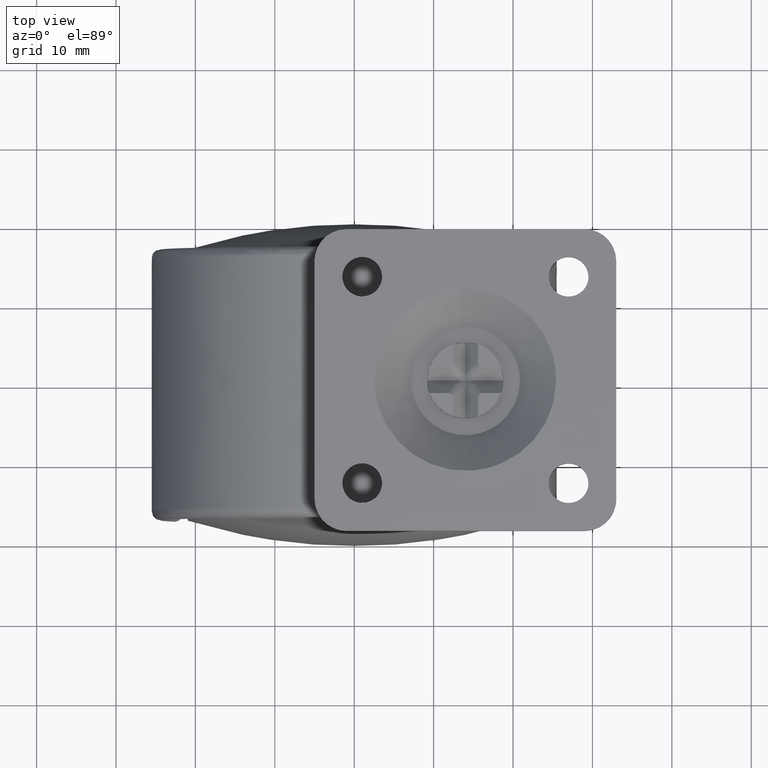
[diagram: clean part render]
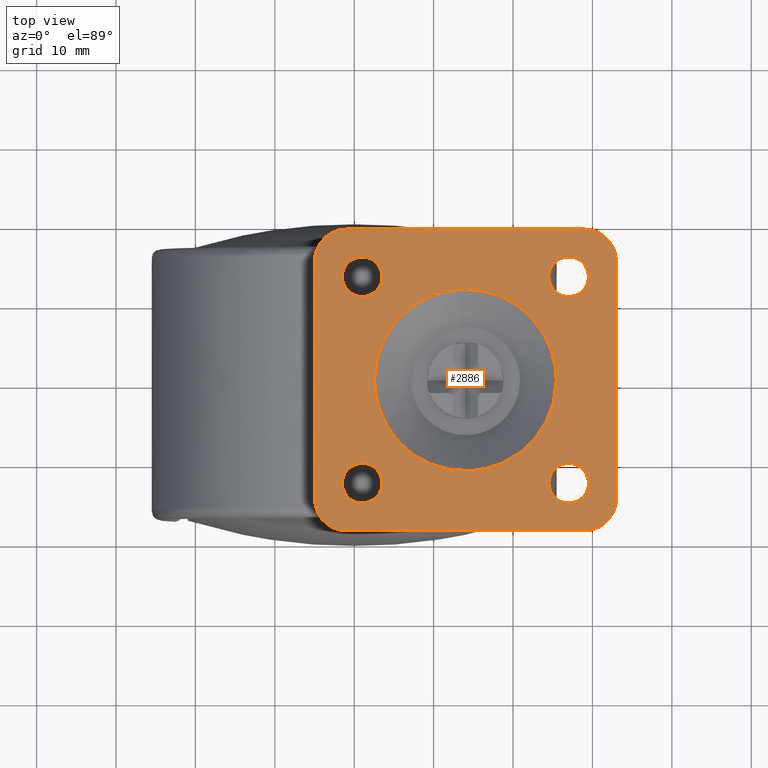
[diagram: same view with one face highlighted and labeled with its STEP entity id]
A machine part, top view. The second image highlights one B-rep face of the part: STEP entity #2886.
In plain terms, the highlighted face is a freeform B-spline surface patch.
Its self-contained STEP definition (entity closure, byte-faithful):
#1166=CARTESIAN_POINT('',(13.101851479533201,11.412033572065781,37.500000000000668));
#1167=VERTEX_POINT('',#1166);
#1173=CARTESIAN_POINT('',(2.552676155037100,0.0,37.500000000000000));
#1174=VERTEX_POINT('',#1173);
#1175=CARTESIAN_POINT('',(2.552676155037100,0.0,37.500000000000000));
#1176=CARTESIAN_POINT('',(2.552676155037099,10.581795468424964,37.500000000000000));
#1177=CARTESIAN_POINT('',(13.101851479533208,11.412033572065782,37.500000000000668));
#1185=(BOUNDED_CURVE()B_SPLINE_CURVE(2,(#1175,#1176,#1177),.UNSPECIFIED.,.F.,.U.)B_SPLINE_CURVE_WITH_KNOTS((3,3),(0.0,0.236331300632603),.UNSPECIFIED.)CURVE()GEOMETRIC_REPRESENTATION_ITEM()RATIONAL_B_SPLINE_CURVE((1.0,0.723120658605388,0.969723356171474))REPRESENTATION_ITEM(''));
#1186=EDGE_CURVE('',#1174,#1167,#1185,.T.);
#1188=CARTESIAN_POINT('',(14.898144520467000,-11.412033572065781,37.500000000000682));
#1189=VERTEX_POINT('',#1188);
#1190=CARTESIAN_POINT('',(14.898144520467001,-11.412033572065784,37.500000000000675));
#1191=CARTESIAN_POINT('',(14.449764500245397,-11.447321844962996,37.500000000000000));
#1192=CARTESIAN_POINT('',(13.999998000000099,-11.447321844963000,37.500000000000000));
#1193=CARTESIAN_POINT('',(2.552676155037098,-11.447321844963000,37.499999999999993));
#1194=CARTESIAN_POINT('',(2.552676155037100,0.0,37.500000000000000));
#1202=(BOUNDED_CURVE()B_SPLINE_CURVE(2,(#1190,#1191,#1192,#1193,#1194),.UNSPECIFIED.,.F.,.U.)B_SPLINE_CURVE_WITH_KNOTS((3,2,3),(0.736331300632603,0.750000000000000,1.0),.UNSPECIFIED.)CURVE()GEOMETRIC_REPRESENTATION_ITEM()RATIONAL_B_SPLINE_CURVE((0.969723356171474,0.983986122581159,1.0,0.707106781186548,1.0))REPRESENTATION_ITEM(''));
#1203=EDGE_CURVE('',#1189,#1174,#1202,.T.);
#1279=CARTESIAN_POINT('',(25.447319844963101,0.0,37.500000000000000));
#1280=VERTEX_POINT('',#1279);
#1281=CARTESIAN_POINT('',(25.447319844963101,0.0,37.500000000000000));
#1282=CARTESIAN_POINT('',(25.447319844963104,-10.581795468424994,37.500000000000000));
#1283=CARTESIAN_POINT('',(14.898144520467003,-11.412033572065781,37.500000000000675));
#1291=(BOUNDED_CURVE()B_SPLINE_CURVE(2,(#1281,#1282,#1283),.UNSPECIFIED.,.F.,.U.)B_SPLINE_CURVE_WITH_KNOTS((3,3),(0.500000000000000,0.736331300632604),.UNSPECIFIED.)CURVE()GEOMETRIC_REPRESENTATION_ITEM()RATIONAL_B_SPLINE_CURVE((1.0,0.723120658605388,0.969723356171476))REPRESENTATION_ITEM(''));
#1292=EDGE_CURVE('',#1280,#1189,#1291,.T.);
#1294=CARTESIAN_POINT('',(13.101851479533208,11.412033572065782,37.500000000000668));
#1295=CARTESIAN_POINT('',(13.550231499754807,11.447321844963005,37.500000000000007));
#1296=CARTESIAN_POINT('',(13.999998000000099,11.447321844963000,37.500000000000000));
#1297=CARTESIAN_POINT('',(25.447319844963097,11.447321844963000,37.499999999999993));
#1298=CARTESIAN_POINT('',(25.447319844963101,0.0,37.500000000000000));
#1306=(BOUNDED_CURVE()B_SPLINE_CURVE(2,(#1294,#1295,#1296,#1297,#1298),.UNSPECIFIED.,.F.,.U.)B_SPLINE_CURVE_WITH_KNOTS((3,2,3),(0.236331300632603,0.250000000000000,0.500000000000000),.UNSPECIFIED.)CURVE()GEOMETRIC_REPRESENTATION_ITEM()RATIONAL_B_SPLINE_CURVE((0.969723356171474,0.983986122581159,1.0,0.707106781186548,1.0))REPRESENTATION_ITEM(''));
#1307=EDGE_CURVE('',#1167,#1280,#1306,.T.);
#1581=CARTESIAN_POINT('',(1.196145739418088,15.492293334325060,37.500000000000000));
#1582=VERTEX_POINT('',#1581);
#1588=CARTESIAN_POINT('',(-1.500002000000110,13.0,37.500000000000000));
#1589=VERTEX_POINT('',#1588);
#1590=CARTESIAN_POINT('',(1.196145739418089,15.492293334325064,37.500000000000007));
#1591=CARTESIAN_POINT('',(1.098223267618107,15.500000000000005,37.499999999999993));
#1592=CARTESIAN_POINT('',(0.999997999999890,15.500000000000000,37.500000000000000));
#1593=CARTESIAN_POINT('',(-1.500002000000109,15.500000000000004,37.499999999999993));
#1594=CARTESIAN_POINT('',(-1.500002000000110,13.0,37.500000000000000));
#1602=(BOUNDED_CURVE()B_SPLINE_CURVE(2,(#1590,#1591,#1592,#1593,#1594),.UNSPECIFIED.,.F.,.U.)B_SPLINE_CURVE_WITH_KNOTS((3,2,3),(0.736331300619205,0.750000000000000,1.0),.UNSPECIFIED.)CURVE()GEOMETRIC_REPRESENTATION_ITEM()RATIONAL_B_SPLINE_CURVE((0.969723356143513,0.983986122565462,1.0,0.707106781186548,1.0))REPRESENTATION_ITEM(''));
#1603=EDGE_CURVE('',#1582,#1589,#1602,.T.);
#1605=CARTESIAN_POINT('',(0.803850260581692,10.507706665674940,37.500000000000000));
#1606=VERTEX_POINT('',#1605);
#1607=CARTESIAN_POINT('',(-1.500002000000110,13.0,37.500000000000000));
#1608=CARTESIAN_POINT('',(-1.500002000000111,10.689023771037872,37.500000000000007));
#1609=CARTESIAN_POINT('',(0.803850260581692,10.507706665674942,37.500000000000000));
#1617=(BOUNDED_CURVE()B_SPLINE_CURVE(2,(#1607,#1608,#1609),.UNSPECIFIED.,.F.,.U.)B_SPLINE_CURVE_WITH_KNOTS((3,3),(0.0,0.236331300619205),.UNSPECIFIED.)CURVE()GEOMETRIC_REPRESENTATION_ITEM()RATIONAL_B_SPLINE_CURVE((1.0,0.723120658621085,0.969723356143513))REPRESENTATION_ITEM(''));
#1618=EDGE_CURVE('',#1589,#1606,#1617,.T.);
#1664=CARTESIAN_POINT('',(3.499997999999890,13.0,37.500000000000000));
#1665=VERTEX_POINT('',#1664);
#1666=CARTESIAN_POINT('',(0.803850260581692,10.507706665674942,37.500000000000007));
#1667=CARTESIAN_POINT('',(0.901772732381673,10.499999999999996,37.499999999999993));
#1668=CARTESIAN_POINT('',(0.999997999999890,10.500000000000000,37.500000000000000));
#1669=CARTESIAN_POINT('',(3.499997999999890,10.499999999999998,37.499999999999993));
#1670=CARTESIAN_POINT('',(3.499997999999890,13.0,37.500000000000000));
#1678=(BOUNDED_CURVE()B_SPLINE_CURVE(2,(#1666,#1667,#1668,#1669,#1670),.UNSPECIFIED.,.F.,.U.)B_SPLINE_CURVE_WITH_KNOTS((3,2,3),(0.236331300619205,0.250000000000000,0.500000000000000),.UNSPECIFIED.)CURVE()GEOMETRIC_REPRESENTATION_ITEM()RATIONAL_B_SPLINE_CURVE((0.969723356143513,0.983986122565462,1.0,0.707106781186548,1.0))REPRESENTATION_ITEM(''));
#1679=EDGE_CURVE('',#1606,#1665,#1678,.T.);
#1681=CARTESIAN_POINT('',(3.499997999999890,13.0,37.500000000000000));
#1682=CARTESIAN_POINT('',(3.499997999999891,15.310976228962138,37.500000000000000));
#1683=CARTESIAN_POINT('',(1.196145739418089,15.492293334325064,37.500000000000007));
#1691=(BOUNDED_CURVE()B_SPLINE_CURVE(2,(#1681,#1682,#1683),.UNSPECIFIED.,.F.,.U.)B_SPLINE_CURVE_WITH_KNOTS((3,3),(0.500000000000000,0.736331300619206),.UNSPECIFIED.)CURVE()GEOMETRIC_REPRESENTATION_ITEM()RATIONAL_B_SPLINE_CURVE((1.0,0.723120658621085,0.969723356143515))REPRESENTATION_ITEM(''));
#1692=EDGE_CURVE('',#1665,#1582,#1691,.T.);
#1763=CARTESIAN_POINT('',(27.196145739418299,15.492293334325060,37.500000000000000));
#1764=VERTEX_POINT('',#1763);
#1770=CARTESIAN_POINT('',(24.499998000000101,13.0,37.500000000000000));
#1771=VERTEX_POINT('',#1770);
#1772=CARTESIAN_POINT('',(27.196145739418302,15.492293334325057,37.500000000000000));
#1773=CARTESIAN_POINT('',(27.098223267618319,15.500000000000002,37.500000000000000));
#1774=CARTESIAN_POINT('',(26.999998000000101,15.500000000000000,37.500000000000000));
#1775=CARTESIAN_POINT('',(24.499998000000108,15.500000000000004,37.499999999999993));
#1776=CARTESIAN_POINT('',(24.499998000000101,13.0,37.500000000000000));
#1784=(BOUNDED_CURVE()B_SPLINE_CURVE(2,(#1772,#1773,#1774,#1775,#1776),.UNSPECIFIED.,.F.,.U.)B_SPLINE_CURVE_WITH_KNOTS((3,2,3),(0.736331300619205,0.750000000000000,1.0),.UNSPECIFIED.)CURVE()GEOMETRIC_REPRESENTATION_ITEM()RATIONAL_B_SPLINE_CURVE((0.969723356143512,0.983986122565462,1.0,0.707106781186548,1.0))REPRESENTATION_ITEM(''));
#1785=EDGE_CURVE('',#1764,#1771,#1784,.T.);
#1787=CARTESIAN_POINT('',(26.803850260581900,10.507706665674940,37.500000000000000));
#1788=VERTEX_POINT('',#1787);
#1789=CARTESIAN_POINT('',(24.499998000000101,13.0,37.500000000000000));
#1790=CARTESIAN_POINT('',(24.499998000000108,10.689023771037872,37.500000000000000));
#1791=CARTESIAN_POINT('',(26.803850260581907,10.507706665674942,37.500000000000007));
#1799=(BOUNDED_CURVE()B_SPLINE_CURVE(2,(#1789,#1790,#1791),.UNSPECIFIED.,.F.,.U.)B_SPLINE_CURVE_WITH_KNOTS((3,3),(0.0,0.236331300619205),.UNSPECIFIED.)CURVE()GEOMETRIC_REPRESENTATION_ITEM()RATIONAL_B_SPLINE_CURVE((1.0,0.723120658621085,0.969723356143513))REPRESENTATION_ITEM(''));
#1800=EDGE_CURVE('',#1771,#1788,#1799,.T.);
#1846=CARTESIAN_POINT('',(29.499998000000101,13.0,37.500000000000000));
#1847=VERTEX_POINT('',#1846);
#1848=CARTESIAN_POINT('',(26.803850260581907,10.507706665674934,37.500000000000000));
#1849=CARTESIAN_POINT('',(26.901772732381886,10.499999999999998,37.500000000000000));
#1850=CARTESIAN_POINT('',(26.999998000000101,10.500000000000000,37.500000000000000));
#1851=CARTESIAN_POINT('',(29.499998000000097,10.499999999999998,37.499999999999993));
#1852=CARTESIAN_POINT('',(29.499998000000101,13.0,37.500000000000000));
#1860=(BOUNDED_CURVE()B_SPLINE_CURVE(2,(#1848,#1849,#1850,#1851,#1852),.UNSPECIFIED.,.F.,.U.)B_SPLINE_CURVE_WITH_KNOTS((3,2,3),(0.236331300619205,0.250000000000000,0.500000000000000),.UNSPECIFIED.)CURVE()GEOMETRIC_REPRESENTATION_ITEM()RATIONAL_B_SPLINE_CURVE((0.969723356143513,0.983986122565462,1.0,0.707106781186548,1.0))REPRESENTATION_ITEM(''));
#1861=EDGE_CURVE('',#1788,#1847,#1860,.T.);
#1863=CARTESIAN_POINT('',(29.499998000000101,13.0,37.500000000000000));
#1864=CARTESIAN_POINT('',(29.499998000000105,15.310976228962138,37.500000000000000));
#1865=CARTESIAN_POINT('',(27.196145739418302,15.492293334325064,37.500000000000007));
#1873=(BOUNDED_CURVE()B_SPLINE_CURVE(2,(#1863,#1864,#1865),.UNSPECIFIED.,.F.,.U.)B_SPLINE_CURVE_WITH_KNOTS((3,3),(0.500000000000000,0.736331300619206),.UNSPECIFIED.)CURVE()GEOMETRIC_REPRESENTATION_ITEM()RATIONAL_B_SPLINE_CURVE((1.0,0.723120658621085,0.969723356143515))REPRESENTATION_ITEM(''));
#1874=EDGE_CURVE('',#1847,#1764,#1873,.T.);
#1945=CARTESIAN_POINT('',(1.196145739418091,-10.507706665674940,37.500000000000000));
#1946=VERTEX_POINT('',#1945);
#1952=CARTESIAN_POINT('',(-1.500002000000107,-13.0,37.500000000000000));
#1953=VERTEX_POINT('',#1952);
#1954=CARTESIAN_POINT('',(1.196145739418092,-10.507706665674942,37.500000000000007));
#1955=CARTESIAN_POINT('',(1.098223267618110,-10.499999999999996,37.499999999999993));
#1956=CARTESIAN_POINT('',(0.999997999999893,-10.500000000000000,37.500000000000000));
#1957=CARTESIAN_POINT('',(-1.500002000000106,-10.499999999999998,37.499999999999993));
#1958=CARTESIAN_POINT('',(-1.500002000000107,-13.0,37.500000000000000));
#1966=(BOUNDED_CURVE()B_SPLINE_CURVE(2,(#1954,#1955,#1956,#1957,#1958),.UNSPECIFIED.,.F.,.U.)B_SPLINE_CURVE_WITH_KNOTS((3,2,3),(0.736331300619205,0.750000000000000,1.0),.UNSPECIFIED.)CURVE()GEOMETRIC_REPRESENTATION_ITEM()RATIONAL_B_SPLINE_CURVE((0.969723356143513,0.983986122565462,1.0,0.707106781186548,1.0))REPRESENTATION_ITEM(''));
#1967=EDGE_CURVE('',#1946,#1953,#1966,.T.);
#1969=CARTESIAN_POINT('',(0.803850260581695,-15.492293334325060,37.500000000000000));
#1970=VERTEX_POINT('',#1969);
#1971=CARTESIAN_POINT('',(-1.500002000000107,-13.0,37.500000000000000));
#1972=CARTESIAN_POINT('',(-1.500002000000108,-15.310976228962133,37.500000000000000));
#1973=CARTESIAN_POINT('',(0.803850260581695,-15.492293334325064,37.500000000000007));
#1981=(BOUNDED_CURVE()B_SPLINE_CURVE(2,(#1971,#1972,#1973),.UNSPECIFIED.,.F.,.U.)B_SPLINE_CURVE_WITH_KNOTS((3,3),(0.0,0.236331300619205),.UNSPECIFIED.)CURVE()GEOMETRIC_REPRESENTATION_ITEM()RATIONAL_B_SPLINE_CURVE((1.0,0.723120658621085,0.969723356143513))REPRESENTATION_ITEM(''));
#1982=EDGE_CURVE('',#1953,#1970,#1981,.T.);
#2028=CARTESIAN_POINT('',(3.499997999999893,-13.0,37.500000000000000));
#2029=VERTEX_POINT('',#2028);
#2030=CARTESIAN_POINT('',(0.803850260581695,-15.492293334325057,37.500000000000000));
#2031=CARTESIAN_POINT('',(0.901772732381676,-15.499999999999996,37.500000000000000));
#2032=CARTESIAN_POINT('',(0.999997999999893,-15.500000000000000,37.500000000000000));
#2033=CARTESIAN_POINT('',(3.499997999999894,-15.500000000000004,37.499999999999993));
#2034=CARTESIAN_POINT('',(3.499997999999893,-13.0,37.500000000000000));
#2042=(BOUNDED_CURVE()B_SPLINE_CURVE(2,(#2030,#2031,#2032,#2033,#2034),.UNSPECIFIED.,.F.,.U.)B_SPLINE_CURVE_WITH_KNOTS((3,2,3),(0.236331300619205,0.250000000000000,0.500000000000000),.UNSPECIFIED.)CURVE()GEOMETRIC_REPRESENTATION_ITEM()RATIONAL_B_SPLINE_CURVE((0.969723356143513,0.983986122565462,1.0,0.707106781186548,1.0))REPRESENTATION_ITEM(''));
#2043=EDGE_CURVE('',#1970,#2029,#2042,.T.);
#2045=CARTESIAN_POINT('',(3.499997999999893,-13.0,37.500000000000000));
#2046=CARTESIAN_POINT('',(3.499997999999894,-10.689023771037863,37.500000000000000));
#2047=CARTESIAN_POINT('',(1.196145739418091,-10.507706665674940,37.500000000000007));
#2055=(BOUNDED_CURVE()B_SPLINE_CURVE(2,(#2045,#2046,#2047),.UNSPECIFIED.,.F.,.U.)B_SPLINE_CURVE_WITH_KNOTS((3,3),(0.500000000000000,0.736331300619206),.UNSPECIFIED.)CURVE()GEOMETRIC_REPRESENTATION_ITEM()RATIONAL_B_SPLINE_CURVE((1.0,0.723120658621085,0.969723356143515))REPRESENTATION_ITEM(''));
#2056=EDGE_CURVE('',#2029,#1946,#2055,.T.);
#2127=CARTESIAN_POINT('',(27.196145739418299,-10.507706665674940,37.500000000000000));
#2128=VERTEX_POINT('',#2127);
#2134=CARTESIAN_POINT('',(24.499998000000101,-13.0,37.500000000000000));
#2135=VERTEX_POINT('',#2134);
#2136=CARTESIAN_POINT('',(27.196145739418302,-10.507706665674942,37.500000000000000));
#2137=CARTESIAN_POINT('',(27.098223267618319,-10.500000000000002,37.500000000000000));
#2138=CARTESIAN_POINT('',(26.999998000000101,-10.500000000000000,37.500000000000000));
#2139=CARTESIAN_POINT('',(24.499998000000108,-10.499999999999998,37.499999999999993));
#2140=CARTESIAN_POINT('',(24.499998000000101,-13.0,37.500000000000000));
#2148=(BOUNDED_CURVE()B_SPLINE_CURVE(2,(#2136,#2137,#2138,#2139,#2140),.UNSPECIFIED.,.F.,.U.)B_SPLINE_CURVE_WITH_KNOTS((3,2,3),(0.736331300619205,0.750000000000000,1.0),.UNSPECIFIED.)CURVE()GEOMETRIC_REPRESENTATION_ITEM()RATIONAL_B_SPLINE_CURVE((0.969723356143512,0.983986122565462,1.0,0.707106781186548,1.0))REPRESENTATION_ITEM(''));
#2149=EDGE_CURVE('',#2128,#2135,#2148,.T.);
#2151=CARTESIAN_POINT('',(26.803850260581900,-15.492293334325060,37.500000000000000));
#2152=VERTEX_POINT('',#2151);
#2153=CARTESIAN_POINT('',(24.499998000000101,-13.0,37.500000000000000));
#2154=CARTESIAN_POINT('',(24.499998000000108,-15.310976228962133,37.500000000000000));
#2155=CARTESIAN_POINT('',(26.803850260581907,-15.492293334325064,37.500000000000007));
#2163=(BOUNDED_CURVE()B_SPLINE_CURVE(2,(#2153,#2154,#2155),.UNSPECIFIED.,.F.,.U.)B_SPLINE_CURVE_WITH_KNOTS((3,3),(0.0,0.236331300619205),.UNSPECIFIED.)CURVE()GEOMETRIC_REPRESENTATION_ITEM()RATIONAL_B_SPLINE_CURVE((1.0,0.723120658621085,0.969723356143513))REPRESENTATION_ITEM(''));
#2164=EDGE_CURVE('',#2135,#2152,#2163,.T.);
#2210=CARTESIAN_POINT('',(29.499998000000101,-13.0,37.500000000000000));
#2211=VERTEX_POINT('',#2210);
#2212=CARTESIAN_POINT('',(26.803850260581907,-15.492293334325057,37.500000000000000));
#2213=CARTESIAN_POINT('',(26.901772732381886,-15.499999999999996,37.500000000000000));
#2214=CARTESIAN_POINT('',(26.999998000000101,-15.500000000000000,37.500000000000000));
#2215=CARTESIAN_POINT('',(29.499998000000097,-15.500000000000004,37.499999999999993));
#2216=CARTESIAN_POINT('',(29.499998000000101,-13.0,37.500000000000000));
#2224=(BOUNDED_CURVE()B_SPLINE_CURVE(2,(#2212,#2213,#2214,#2215,#2216),.UNSPECIFIED.,.F.,.U.)B_SPLINE_CURVE_WITH_KNOTS((3,2,3),(0.236331300619205,0.250000000000000,0.500000000000000),.UNSPECIFIED.)CURVE()GEOMETRIC_REPRESENTATION_ITEM()RATIONAL_B_SPLINE_CURVE((0.969723356143513,0.983986122565462,1.0,0.707106781186548,1.0))REPRESENTATION_ITEM(''));
#2225=EDGE_CURVE('',#2152,#2211,#2224,.T.);
#2227=CARTESIAN_POINT('',(29.499998000000101,-13.0,37.500000000000000));
#2228=CARTESIAN_POINT('',(29.499998000000105,-10.689023771037863,37.500000000000000));
#2229=CARTESIAN_POINT('',(27.196145739418302,-10.507706665674940,37.500000000000007));
#2237=(BOUNDED_CURVE()B_SPLINE_CURVE(2,(#2227,#2228,#2229),.UNSPECIFIED.,.F.,.U.)B_SPLINE_CURVE_WITH_KNOTS((3,3),(0.500000000000000,0.736331300619206),.UNSPECIFIED.)CURVE()GEOMETRIC_REPRESENTATION_ITEM()RATIONAL_B_SPLINE_CURVE((1.0,0.723120658621085,0.969723356143515))REPRESENTATION_ITEM(''));
#2238=EDGE_CURVE('',#2211,#2128,#2237,.T.);
#2761=CARTESIAN_POINT('',(-6.898101790585936,20.898099926348621,37.500000000000000));
#2762=CARTESIAN_POINT('',(34.898096091853560,20.898099926348621,37.500000000000000));
#2763=CARTESIAN_POINT('',(-6.898101790585935,-20.898100945588052,37.500000000000000));
#2764=CARTESIAN_POINT('',(34.898096091853560,-20.898100945588052,37.500000000000000));
#2765=B_SPLINE_SURFACE_WITH_KNOTS('',1,1,((#2761,#2763),(#2762,#2764)),.UNSPECIFIED.,.F.,.F.,.U.,(2,2),(2,2),(0.0,41.796197882439493),(0.0,41.796200871936669),.UNSPECIFIED.);
#2766=CARTESIAN_POINT('',(-5.000002000000000,-15.0,37.500000000000000));
#2767=VERTEX_POINT('',#2766);
#2768=CARTESIAN_POINT('',(-5.000002000000000,15.0,37.500000000000000));
#2769=VERTEX_POINT('',#2768);
#2770=CARTESIAN_POINT('',(-5.000002000000000,-15.0,37.500000000000000));
#2771=CARTESIAN_POINT('',(-5.000002000000000,15.0,37.500000000000000));
#2772=QUASI_UNIFORM_CURVE('',1,(#2770,#2771),.UNSPECIFIED.,.F.,.U.);
#2773=EDGE_CURVE('',#2767,#2769,#2772,.T.);
#2774=ORIENTED_EDGE('',*,*,#2773,.F.);
#2775=CARTESIAN_POINT('',(-1.000002000000000,-19.0,37.500000000000000));
#2776=VERTEX_POINT('',#2775);
#2777=CARTESIAN_POINT('',(-5.000002000000000,-15.0,37.500000000000000));
#2778=CARTESIAN_POINT('',(-5.000002000000001,-18.999999999999993,37.499999999999993));
#2779=CARTESIAN_POINT('',(-1.000002000000000,-19.0,37.500000000000000));
#2787=(BOUNDED_CURVE()B_SPLINE_CURVE(2,(#2777,#2778,#2779),.UNSPECIFIED.,.F.,.U.)CURVE()GEOMETRIC_REPRESENTATION_ITEM()QUASI_UNIFORM_CURVE()RATIONAL_B_SPLINE_CURVE((1.0,0.707106781186548,1.0))REPRESENTATION_ITEM(''));
#2788=EDGE_CURVE('',#2767,#2776,#2787,.T.);
#2789=ORIENTED_EDGE('',*,*,#2788,.T.);
#2790=CARTESIAN_POINT('',(28.999998000000001,-19.0,37.500000000000000));
#2791=VERTEX_POINT('',#2790);
#2792=CARTESIAN_POINT('',(28.999998000000001,-19.0,37.500000000000000));
#2793=CARTESIAN_POINT('',(-1.000002000000000,-19.0,37.500000000000000));
#2794=QUASI_UNIFORM_CURVE('',1,(#2792,#2793),.UNSPECIFIED.,.F.,.U.);
#2795=EDGE_CURVE('',#2791,#2776,#2794,.T.);
#2796=ORIENTED_EDGE('',*,*,#2795,.F.);
#2797=CARTESIAN_POINT('',(32.999998000000012,-15.0,37.500000000000000));
#2798=VERTEX_POINT('',#2797);
#2799=CARTESIAN_POINT('',(28.999998000000001,-19.0,37.500000000000000));
#2800=CARTESIAN_POINT('',(32.999998000000005,-18.999999999999993,37.499999999999993));
#2801=CARTESIAN_POINT('',(32.999998000000012,-15.0,37.500000000000000));
#2809=(BOUNDED_CURVE()B_SPLINE_CURVE(2,(#2799,#2800,#2801),.UNSPECIFIED.,.F.,.U.)CURVE()GEOMETRIC_REPRESENTATION_ITEM()QUASI_UNIFORM_CURVE()RATIONAL_B_SPLINE_CURVE((1.0,0.707106781186548,1.0))REPRESENTATION_ITEM(''));
#2810=EDGE_CURVE('',#2791,#2798,#2809,.T.);
#2811=ORIENTED_EDGE('',*,*,#2810,.T.);
#2812=CARTESIAN_POINT('',(32.999998000000012,15.0,37.500000000000000));
#2813=VERTEX_POINT('',#2812);
#2814=CARTESIAN_POINT('',(32.999998000000012,15.0,37.500000000000000));
#2815=CARTESIAN_POINT('',(32.999998000000012,-15.0,37.500000000000000));
#2816=QUASI_UNIFORM_CURVE('',1,(#2814,#2815),.UNSPECIFIED.,.F.,.U.);
#2817=EDGE_CURVE('',#2813,#2798,#2816,.T.);
#2818=ORIENTED_EDGE('',*,*,#2817,.F.);
#2819=CARTESIAN_POINT('',(28.999998000000001,19.0,37.500000000000000));
#2820=VERTEX_POINT('',#2819);
#2821=CARTESIAN_POINT('',(32.999998000000012,15.0,37.500000000000000));
#2822=CARTESIAN_POINT('',(32.999998000000005,18.999999999999993,37.499999999999993));
#2823=CARTESIAN_POINT('',(28.999998000000001,19.0,37.500000000000000));
#2831=(BOUNDED_CURVE()B_SPLINE_CURVE(2,(#2821,#2822,#2823),.UNSPECIFIED.,.F.,.U.)CURVE()GEOMETRIC_REPRESENTATION_ITEM()QUASI_UNIFORM_CURVE()RATIONAL_B_SPLINE_CURVE((1.0,0.707106781186548,1.0))REPRESENTATION_ITEM(''));
#2832=EDGE_CURVE('',#2813,#2820,#2831,.T.);
#2833=ORIENTED_EDGE('',*,*,#2832,.T.);
#2834=CARTESIAN_POINT('',(-1.000002000000000,19.0,37.500000000000000));
#2835=VERTEX_POINT('',#2834);
#2836=CARTESIAN_POINT('',(-1.000002000000000,19.0,37.500000000000000));
#2837=CARTESIAN_POINT('',(28.999998000000001,19.0,37.500000000000000));
#2838=QUASI_UNIFORM_CURVE('',1,(#2836,#2837),.UNSPECIFIED.,.F.,.U.);
#2839=EDGE_CURVE('',#2835,#2820,#2838,.T.);
#2840=ORIENTED_EDGE('',*,*,#2839,.F.);
#2841=CARTESIAN_POINT('',(-1.000002000000000,19.0,37.500000000000000));
#2842=CARTESIAN_POINT('',(-5.000002000000001,18.999999999999993,37.499999999999993));
#2843=CARTESIAN_POINT('',(-5.000002000000000,15.0,37.500000000000000));
#2851=(BOUNDED_CURVE()B_SPLINE_CURVE(2,(#2841,#2842,#2843),.UNSPECIFIED.,.F.,.U.)CURVE()GEOMETRIC_REPRESENTATION_ITEM()QUASI_UNIFORM_CURVE()RATIONAL_B_SPLINE_CURVE((1.0,0.707106781186548,1.0))REPRESENTATION_ITEM(''));
#2852=EDGE_CURVE('',#2835,#2769,#2851,.T.);
#2853=ORIENTED_EDGE('',*,*,#2852,.T.);
#2854=EDGE_LOOP('',(#2774,#2789,#2796,#2811,#2818,#2833,#2840,#2853));
#2855=FACE_OUTER_BOUND('',#2854,.T.);
#2856=ORIENTED_EDGE('',*,*,#2238,.F.);
#2857=ORIENTED_EDGE('',*,*,#2225,.F.);
#2858=ORIENTED_EDGE('',*,*,#2164,.F.);
#2859=ORIENTED_EDGE('',*,*,#2149,.F.);
#2860=EDGE_LOOP('',(#2856,#2857,#2858,#2859));
#2861=FACE_BOUND('',#2860,.T.);
#2862=ORIENTED_EDGE('',*,*,#2056,.F.);
#2863=ORIENTED_EDGE('',*,*,#2043,.F.);
#2864=ORIENTED_EDGE('',*,*,#1982,.F.);
#2865=ORIENTED_EDGE('',*,*,#1967,.F.);
#2866=EDGE_LOOP('',(#2862,#2863,#2864,#2865));
#2867=FACE_BOUND('',#2866,.T.);
#2868=ORIENTED_EDGE('',*,*,#1874,.F.);
#2869=ORIENTED_EDGE('',*,*,#1861,.F.);
#2870=ORIENTED_EDGE('',*,*,#1800,.F.);
#2871=ORIENTED_EDGE('',*,*,#1785,.F.);
#2872=EDGE_LOOP('',(#2868,#2869,#2870,#2871));
#2873=FACE_BOUND('',#2872,.T.);
#2874=ORIENTED_EDGE('',*,*,#1692,.F.);
#2875=ORIENTED_EDGE('',*,*,#1679,.F.);
#2876=ORIENTED_EDGE('',*,*,#1618,.F.);
#2877=ORIENTED_EDGE('',*,*,#1603,.F.);
#2878=EDGE_LOOP('',(#2874,#2875,#2876,#2877));
#2879=FACE_BOUND('',#2878,.T.);
#2880=ORIENTED_EDGE('',*,*,#1292,.T.);
#2881=ORIENTED_EDGE('',*,*,#1203,.T.);
#2882=ORIENTED_EDGE('',*,*,#1186,.T.);
#2883=ORIENTED_EDGE('',*,*,#1307,.T.);
#2884=EDGE_LOOP('',(#2880,#2881,#2882,#2883));
#2885=FACE_BOUND('',#2884,.T.);
#2886=ADVANCED_FACE('',(#2855,#2861,#2867,#2873,#2879,#2885),#2765,.F.);